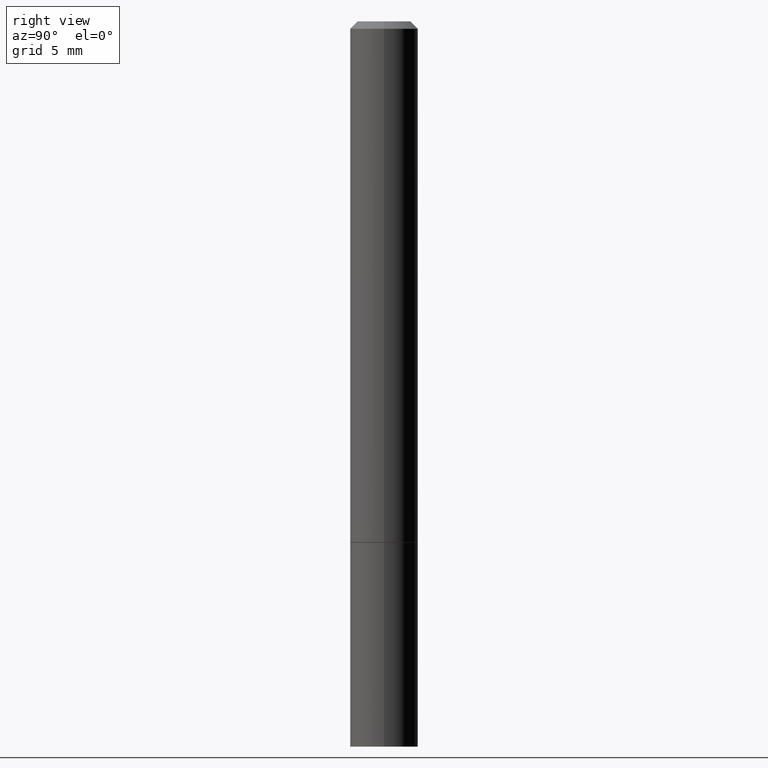
[diagram: clean part render]
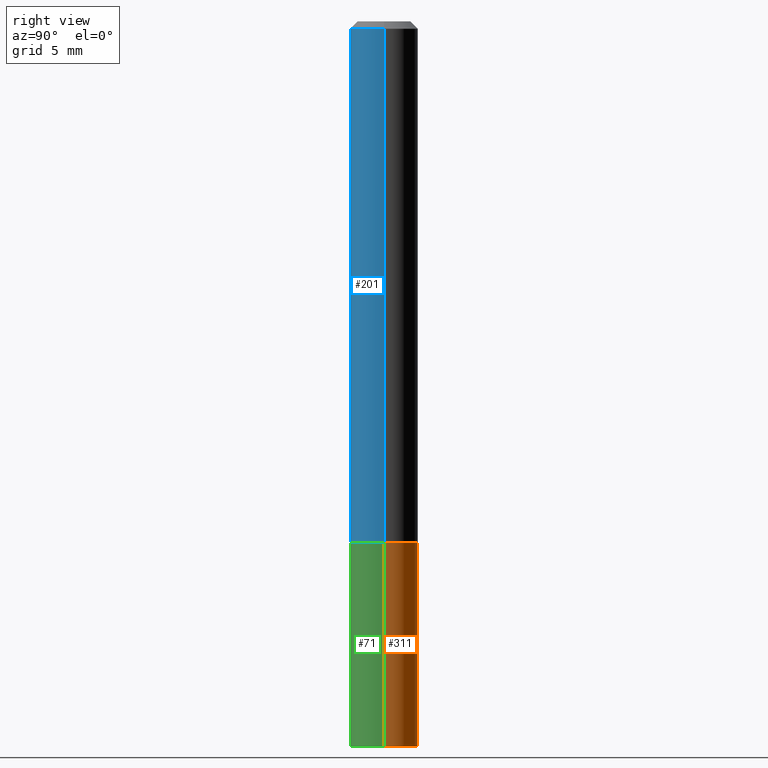
[diagram: same view with three faces highlighted in distinct colors, each labeled with its STEP entity id]
A machine part, right view with three faces highlighted in distinct colors.
Their STEP definitions:

[orange] entity #311 — the highlighted cylindrical surface (edge-blend (fillet) strip) has radius 2.3813 mm, axis along (-0, 0, 1).
#29 = DIRECTION ( 'NONE',  ( 1.000000000000000000, -6.982962677686261189E-15, 0.000000000000000000 ) ) ;
#35 = AXIS2_PLACEMENT_3D ( 'NONE', #145, #328, #305 ) ;
#37 = EDGE_CURVE ( 'NONE', #65, #322, #170, .T. ) ;
#49 = DIRECTION ( 'NONE',  ( -2.445468806185136597E-29, 3.491481338843145583E-15, 1.000000000000000000 ) ) ;
#65 = VERTEX_POINT ( 'NONE', #194 ) ;
#75 = ORIENTED_EDGE ( 'NONE', *, *, #78, .F. ) ;
#77 = ORIENTED_EDGE ( 'NONE', *, *, #122, .T. ) ;
#78 = EDGE_CURVE ( 'NONE', #322, #346, #288, .T. ) ;
#87 = DIRECTION ( 'NONE',  ( -2.445468806185136877E-29, 3.491481338843145188E-15, 1.000000000000000000 ) ) ;
#115 = CARTESIAN_POINT ( 'NONE',  ( -0.09375000000000001388, -5.334849736361562435E-15, -1.437500000000000000 ) ) ;
#122 = EDGE_CURVE ( 'NONE', #260, #346, #223, .T. ) ;
#137 = CYLINDRICAL_SURFACE ( 'NONE', #35, 0.09375000000000001388 ) ;
#145 = CARTESIAN_POINT ( 'NONE',  ( 0.000000000000000000, 0.000000000000000000, 0.000000000000000000 ) ) ;
#154 = ORIENTED_EDGE ( 'NONE', *, *, #37, .F. ) ;
#156 = ORIENTED_EDGE ( 'NONE', *, *, #323, .T. ) ;
#160 = DIRECTION ( 'NONE',  ( -2.445468806185136877E-29, 3.491481338843145188E-15, 1.000000000000000000 ) ) ;
#161 = DIRECTION ( 'NONE',  ( 1.000000000000000000, -6.982962677686261189E-15, 0.000000000000000000 ) ) ;
#162 = AXIS2_PLACEMENT_3D ( 'NONE', #198, #282, #29 ) ;
#170 = LINE ( 'NONE', #220, #240 ) ;
#178 = AXIS2_PLACEMENT_3D ( 'NONE', #252, #49, #161 ) ;
#180 = EDGE_LOOP ( 'NONE', ( #156, #77, #75, #154 ) ) ;
#194 = CARTESIAN_POINT ( 'NONE',  ( 0.09375000000000001388, -7.637615428719378669E-15, -2.000000000000000000 ) ) ;
#195 = CARTESIAN_POINT ( 'NONE',  ( -0.09375000000000001388, -5.334849736361562435E-15, -2.000000000000000000 ) ) ;
#198 = CARTESIAN_POINT ( 'NONE',  ( 3.515361408891133858E-29, -5.019004424587021553E-15, -1.437500000000000000 ) ) ;
#220 = CARTESIAN_POINT ( 'NONE',  ( 0.09375000000000001388, -6.546527510330875041E-16, 4.571415727308690506E-30 ) ) ;
#223 = LINE ( 'NONE', #324, #308 ) ;
#240 = VECTOR ( 'NONE', #160, 39.37007874015748143 ) ;
#252 = CARTESIAN_POINT ( 'NONE',  ( 4.890937612370273194E-29, -6.982962677686291165E-15, -2.000000000000000000 ) ) ;
#260 = VERTEX_POINT ( 'NONE', #195 ) ;
#282 = DIRECTION ( 'NONE',  ( -2.445468806185136597E-29, 3.491481338843145583E-15, 1.000000000000000000 ) ) ;
#288 = CIRCLE ( 'NONE', #162, 0.09375000000000001388 ) ;
#305 = DIRECTION ( 'NONE',  ( 1.000000000000000000, -6.982962677686265922E-15, 4.876176775795935793E-29 ) ) ;
#308 = VECTOR ( 'NONE', #87, 39.37007874015748143 ) ;
#311 = ADVANCED_FACE ( 'NONE', ( #334 ), #137, .T. ) ;
#322 = VERTEX_POINT ( 'NONE', #358 ) ;
#323 = EDGE_CURVE ( 'NONE', #65, #260, #344, .T. ) ;
#324 = CARTESIAN_POINT ( 'NONE',  ( -0.09375000000000001388, 6.661338147750940229E-16, -4.611501647113973995E-30 ) ) ;
#328 = DIRECTION ( 'NONE',  ( -2.445468806185136597E-29, 3.491481338843145583E-15, 1.000000000000000000 ) ) ;
#334 = FACE_OUTER_BOUND ( 'NONE', #180, .T. ) ;
#344 = CIRCLE ( 'NONE', #178, 0.09375000000000001388 ) ;
#346 = VERTEX_POINT ( 'NONE', #115 ) ;
#358 = CARTESIAN_POINT ( 'NONE',  ( 0.09375000000000001388, -5.673657175620109057E-15, -1.437500000000000000 ) ) ;

[blue] entity #201 — the highlighted cylindrical surface (edge-blend (fillet) strip) has radius 2.3812 mm, axis along (-0, 0, 1).
#23 = AXIS2_PLACEMENT_3D ( 'NONE', #62, #186, #291 ) ;
#24 = LINE ( 'NONE', #55, #221 ) ;
#53 = DIRECTION ( 'NONE',  ( -2.445468806185136597E-29, 3.491481338843145583E-15, 1.000000000000000000 ) ) ;
#55 = CARTESIAN_POINT ( 'NONE',  ( -0.09374999999999991673, 6.661338147750933326E-16, -4.611501647113969791E-30 ) ) ;
#56 = CARTESIAN_POINT ( 'NONE',  ( 3.512915940084948255E-29, -5.015512943248178546E-15, -1.436499999999999888 ) ) ;
#61 = CIRCLE ( 'NONE', #90, 0.09374999999999983347 ) ;
#62 = CARTESIAN_POINT ( 'NONE',  ( 0.000000000000000000, 0.000000000000000000, 0.000000000000000000 ) ) ;
#66 = FACE_OUTER_BOUND ( 'NONE', #360, .T. ) ;
#83 = CARTESIAN_POINT ( 'NONE',  ( 0.09374999999999991673, -6.546527510330869125E-16, 4.571415727308685602E-30 ) ) ;
#90 = AXIS2_PLACEMENT_3D ( 'NONE', #172, #53, #257 ) ;
#93 = EDGE_CURVE ( 'NONE', #95, #270, #276, .T. ) ;
#95 = VERTEX_POINT ( 'NONE', #140 ) ;
#96 = VERTEX_POINT ( 'NONE', #247 ) ;
#101 = CYLINDRICAL_SURFACE ( 'NONE', #23, 0.09374999999999991673 ) ;
#124 = DIRECTION ( 'NONE',  ( 1.000000000000000000, -6.982962677686261189E-15, 0.000000000000000000 ) ) ;
#130 = VERTEX_POINT ( 'NONE', #284 ) ;
#140 = CARTESIAN_POINT ( 'NONE',  ( 0.09375000000000001388, -5.670165694281265261E-15, -1.436499999999999888 ) ) ;
#157 = EDGE_CURVE ( 'NONE', #130, #270, #61, .T. ) ;
#168 = EDGE_CURVE ( 'NONE', #96, #95, #188, .T. ) ;
#172 = CARTESIAN_POINT ( 'NONE',  ( 4.890937612370282792E-31, -6.982962677686303935E-17, -0.02000000000000003858 ) ) ;
#186 = DIRECTION ( 'NONE',  ( -2.445468806185136597E-29, 3.491481338843145583E-15, 1.000000000000000000 ) ) ;
#188 = CIRCLE ( 'NONE', #312, 0.09375000000000001388 ) ;
#201 = ADVANCED_FACE ( 'NONE', ( #66 ), #101, .T. ) ;
#206 = ORIENTED_EDGE ( 'NONE', *, *, #93, .T. ) ;
#219 = DIRECTION ( 'NONE',  ( -2.445468806185136877E-29, 3.491481338843145188E-15, 1.000000000000000000 ) ) ;
#221 = VECTOR ( 'NONE', #226, 39.37007874015748143 ) ;
#226 = DIRECTION ( 'NONE',  ( -2.445468806185136877E-29, 3.491481338843145188E-15, 1.000000000000000000 ) ) ;
#227 = CARTESIAN_POINT ( 'NONE',  ( 0.09374999999999983347, -7.130013140679430017E-16, -0.02000000000000003858 ) ) ;
#228 = DIRECTION ( 'NONE',  ( -2.445468806185136597E-29, 3.491481338843145583E-15, 1.000000000000000000 ) ) ;
#247 = CARTESIAN_POINT ( 'NONE',  ( -0.09375000000000001388, -1.876537470237424631E-15, -1.436499999999999888 ) ) ;
#257 = DIRECTION ( 'NONE',  ( 1.000000000000000000, -6.982962677686267499E-15, 0.000000000000000000 ) ) ;
#262 = ORIENTED_EDGE ( 'NONE', *, *, #306, .F. ) ;
#270 = VERTEX_POINT ( 'NONE', #227 ) ;
#276 = LINE ( 'NONE', #83, #313 ) ;
#284 = CARTESIAN_POINT ( 'NONE',  ( -0.09374999999999983347, 5.848231242562233185E-16, -0.02000000000000003858 ) ) ;
#291 = DIRECTION ( 'NONE',  ( 1.000000000000000000, -6.982962677686266711E-15, 4.876176775795935793E-29 ) ) ;
#299 = ORIENTED_EDGE ( 'NONE', *, *, #168, .T. ) ;
#306 = EDGE_CURVE ( 'NONE', #96, #130, #24, .T. ) ;
#312 = AXIS2_PLACEMENT_3D ( 'NONE', #56, #228, #124 ) ;
#313 = VECTOR ( 'NONE', #219, 39.37007874015748143 ) ;
#327 = ORIENTED_EDGE ( 'NONE', *, *, #157, .F. ) ;
#360 = EDGE_LOOP ( 'NONE', ( #262, #299, #206, #327 ) ) ;

[green] entity #71 — the highlighted cylindrical surface (edge-blend (fillet) strip) has radius 2.3813 mm, axis along (-0, 0, 1).
#19 = DIRECTION ( 'NONE',  ( 1.000000000000000000, -6.982962677686261189E-15, 0.000000000000000000 ) ) ;
#37 = EDGE_CURVE ( 'NONE', #65, #322, #170, .T. ) ;
#51 = AXIS2_PLACEMENT_3D ( 'NONE', #255, #92, #365 ) ;
#63 = ORIENTED_EDGE ( 'NONE', *, *, #37, .T. ) ;
#65 = VERTEX_POINT ( 'NONE', #194 ) ;
#71 = ADVANCED_FACE ( 'NONE', ( #165 ), #218, .T. ) ;
#79 = AXIS2_PLACEMENT_3D ( 'NONE', #224, #280, #82 ) ;
#81 = EDGE_CURVE ( 'NONE', #260, #65, #111, .T. ) ;
#82 = DIRECTION ( 'NONE',  ( 1.000000000000000000, -6.982962677686265922E-15, 4.876176775795935793E-29 ) ) ;
#87 = DIRECTION ( 'NONE',  ( -2.445468806185136877E-29, 3.491481338843145188E-15, 1.000000000000000000 ) ) ;
#92 = DIRECTION ( 'NONE',  ( -2.445468806185136597E-29, 3.491481338843145583E-15, 1.000000000000000000 ) ) ;
#111 = CIRCLE ( 'NONE', #132, 0.09375000000000001388 ) ;
#115 = CARTESIAN_POINT ( 'NONE',  ( -0.09375000000000001388, -5.334849736361562435E-15, -1.437500000000000000 ) ) ;
#117 = ORIENTED_EDGE ( 'NONE', *, *, #81, .T. ) ;
#122 = EDGE_CURVE ( 'NONE', #260, #346, #223, .T. ) ;
#132 = AXIS2_PLACEMENT_3D ( 'NONE', #332, #329, #19 ) ;
#151 = EDGE_CURVE ( 'NONE', #346, #322, #211, .T. ) ;
#160 = DIRECTION ( 'NONE',  ( -2.445468806185136877E-29, 3.491481338843145188E-15, 1.000000000000000000 ) ) ;
#165 = FACE_OUTER_BOUND ( 'NONE', #286, .T. ) ;
#170 = LINE ( 'NONE', #220, #240 ) ;
#194 = CARTESIAN_POINT ( 'NONE',  ( 0.09375000000000001388, -7.637615428719378669E-15, -2.000000000000000000 ) ) ;
#195 = CARTESIAN_POINT ( 'NONE',  ( -0.09375000000000001388, -5.334849736361562435E-15, -2.000000000000000000 ) ) ;
#211 = CIRCLE ( 'NONE', #51, 0.09375000000000001388 ) ;
#218 = CYLINDRICAL_SURFACE ( 'NONE', #79, 0.09375000000000001388 ) ;
#220 = CARTESIAN_POINT ( 'NONE',  ( 0.09375000000000001388, -6.546527510330875041E-16, 4.571415727308690506E-30 ) ) ;
#223 = LINE ( 'NONE', #324, #308 ) ;
#224 = CARTESIAN_POINT ( 'NONE',  ( 0.000000000000000000, 0.000000000000000000, 0.000000000000000000 ) ) ;
#240 = VECTOR ( 'NONE', #160, 39.37007874015748143 ) ;
#255 = CARTESIAN_POINT ( 'NONE',  ( 3.515361408891133858E-29, -5.019004424587021553E-15, -1.437500000000000000 ) ) ;
#260 = VERTEX_POINT ( 'NONE', #195 ) ;
#280 = DIRECTION ( 'NONE',  ( -2.445468806185136597E-29, 3.491481338843145583E-15, 1.000000000000000000 ) ) ;
#286 = EDGE_LOOP ( 'NONE', ( #341, #117, #63, #315 ) ) ;
#308 = VECTOR ( 'NONE', #87, 39.37007874015748143 ) ;
#315 = ORIENTED_EDGE ( 'NONE', *, *, #151, .F. ) ;
#322 = VERTEX_POINT ( 'NONE', #358 ) ;
#324 = CARTESIAN_POINT ( 'NONE',  ( -0.09375000000000001388, 6.661338147750940229E-16, -4.611501647113973995E-30 ) ) ;
#329 = DIRECTION ( 'NONE',  ( -2.445468806185136597E-29, 3.491481338843145583E-15, 1.000000000000000000 ) ) ;
#332 = CARTESIAN_POINT ( 'NONE',  ( 4.890937612370273194E-29, -6.982962677686291165E-15, -2.000000000000000000 ) ) ;
#341 = ORIENTED_EDGE ( 'NONE', *, *, #122, .F. ) ;
#346 = VERTEX_POINT ( 'NONE', #115 ) ;
#358 = CARTESIAN_POINT ( 'NONE',  ( 0.09375000000000001388, -5.673657175620109057E-15, -1.437500000000000000 ) ) ;
#365 = DIRECTION ( 'NONE',  ( 1.000000000000000000, -6.982962677686261189E-15, 0.000000000000000000 ) ) ;